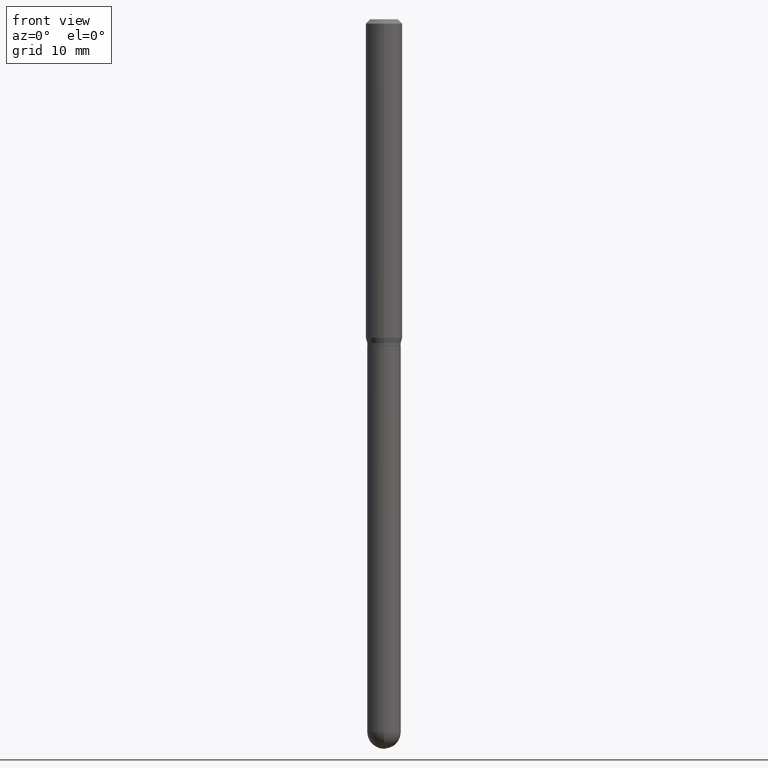
[diagram: clean part render]
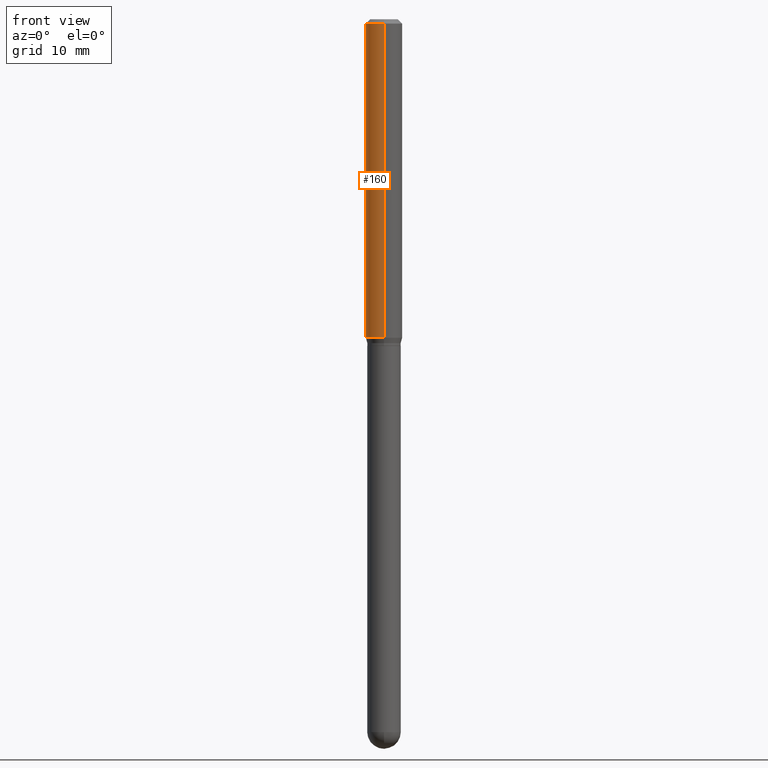
[diagram: same view with one face highlighted and labeled with its STEP entity id]
A machine part, front view. The second image highlights one B-rep face of the part: STEP entity #160.
In plain terms, the highlighted cylindrical surface (edge-blend (fillet) strip) has radius 1.5875 mm, axis along (-0, 0, 1).
Its self-contained STEP definition (entity closure, byte-faithful):
#39 = ORIENTED_EDGE ( 'NONE', *, *, #462, .F. ) ;
#47 = CARTESIAN_POINT ( 'NONE',  ( -4.364351673553916201E-16, -0.06250000000000000000, 2.182151891018701273E-16 ) ) ;
#49 = VERTEX_POINT ( 'NONE', #179 ) ;
#57 = CARTESIAN_POINT ( 'NONE',  ( 2.668866503375434655E-29, -3.810350544632300869E-15, -1.091339745962156105 ) ) ;
#60 = AXIS2_PLACEMENT_3D ( 'NONE', #57, #64, #221 ) ;
#64 = DIRECTION ( 'NONE',  ( -2.445495560158936621E-29, 3.491443025629922431E-15, 1.000000000000000000 ) ) ;
#66 = AXIS2_PLACEMENT_3D ( 'NONE', #182, #416, #151 ) ;
#87 = EDGE_CURVE ( 'NONE', #463, #49, #441, .T. ) ;
#92 = CARTESIAN_POINT ( 'NONE',  ( 4.440892098500891416E-16, 0.06249999999999617667, -1.091339745962156327 ) ) ;
#136 = VERTEX_POINT ( 'NONE', #458 ) ;
#148 = CARTESIAN_POINT ( 'NONE',  ( -4.364351673553650454E-16, -0.06250000000000383027, -1.091339745962155883 ) ) ;
#151 = DIRECTION ( 'NONE',  ( -6.982962677686265922E-15, -1.000000000000000000, 3.483106191921935554E-15 ) ) ;
#153 = FACE_OUTER_BOUND ( 'NONE', #212, .T. ) ;
#160 = ADVANCED_FACE ( 'NONE', ( #153 ), #421, .T. ) ;
#166 = ORIENTED_EDGE ( 'NONE', *, *, #297, .F. ) ;
#179 = CARTESIAN_POINT ( 'NONE',  ( -4.364351673553912750E-16, -0.06250000000000005551, -0.01499999999999979128 ) ) ;
#182 = CARTESIAN_POINT ( 'NONE',  ( 3.668243340238407173E-31, -5.237164538444886679E-17, -0.01500000000000000812 ) ) ;
#183 = CARTESIAN_POINT ( 'NONE',  ( 0.000000000000000000, 0.000000000000000000, 0.000000000000000000 ) ) ;
#202 = ORIENTED_EDGE ( 'NONE', *, *, #87, .T. ) ;
#205 = VECTOR ( 'NONE', #411, 39.37007874015748143 ) ;
#212 = EDGE_LOOP ( 'NONE', ( #166, #313, #202, #39 ) ) ;
#215 = LINE ( 'NONE', #336, #205 ) ;
#221 = DIRECTION ( 'NONE',  ( -6.982962677686265922E-15, -1.000000000000000000, 4.370956789862821150E-15 ) ) ;
#234 = VECTOR ( 'NONE', #401, 39.37007874015748143 ) ;
#255 = CIRCLE ( 'NONE', #60, 0.06250000000000000000 ) ;
#259 = DIRECTION ( 'NONE',  ( -6.982962677686265922E-15, -1.000000000000000000, 3.491443025629922037E-15 ) ) ;
#269 = AXIS2_PLACEMENT_3D ( 'NONE', #183, #448, #259 ) ;
#277 = VERTEX_POINT ( 'NONE', #92 ) ;
#297 = EDGE_CURVE ( 'NONE', #277, #136, #215, .T. ) ;
#302 = EDGE_CURVE ( 'NONE', #277, #463, #255, .T. ) ;
#313 = ORIENTED_EDGE ( 'NONE', *, *, #302, .T. ) ;
#336 = CARTESIAN_POINT ( 'NONE',  ( 4.440892098500625669E-16, 0.06250000000000000000, -2.182151891018701273E-16 ) ) ;
#373 = CIRCLE ( 'NONE', #66, 0.06250000000000000000 ) ;
#401 = DIRECTION ( 'NONE',  ( -2.445495560158936621E-29, 3.491443025629922431E-15, 1.000000000000000000 ) ) ;
#411 = DIRECTION ( 'NONE',  ( -2.445495560158936621E-29, 3.491443025629922431E-15, 1.000000000000000000 ) ) ;
#416 = DIRECTION ( 'NONE',  ( -2.445495560158936621E-29, 3.491443025629922431E-15, 1.000000000000000000 ) ) ;
#421 = CYLINDRICAL_SURFACE ( 'NONE', #269, 0.06250000000000000000 ) ;
#441 = LINE ( 'NONE', #47, #234 ) ;
#448 = DIRECTION ( 'NONE',  ( -2.445495560158936621E-29, 3.491443025629922431E-15, 1.000000000000000000 ) ) ;
#458 = CARTESIAN_POINT ( 'NONE',  ( 4.440892098500893388E-16, 0.06249999999999993755, -0.01500000000000022669 ) ) ;
#462 = EDGE_CURVE ( 'NONE', #136, #49, #373, .T. ) ;
#463 = VERTEX_POINT ( 'NONE', #148 ) ;